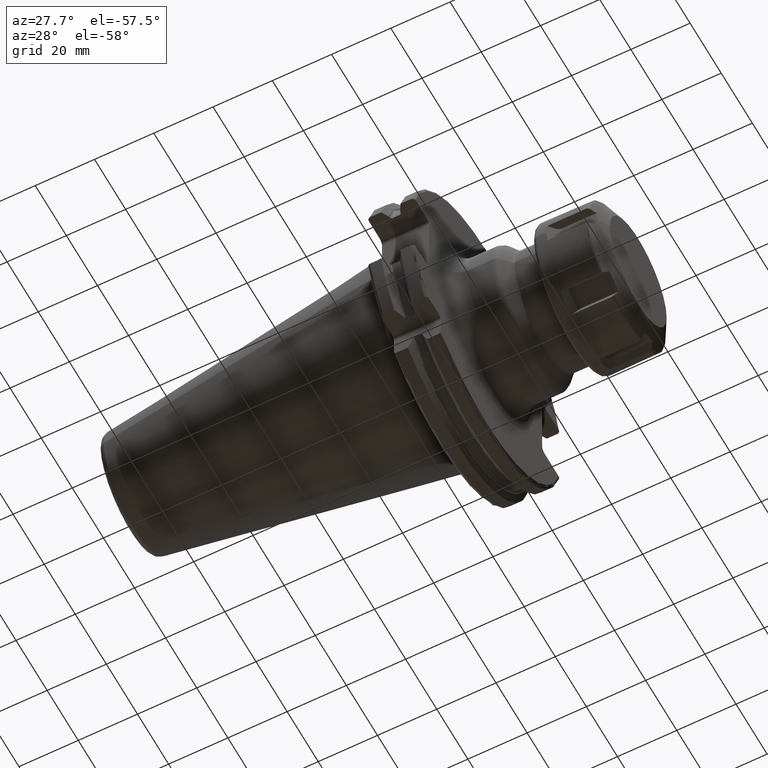
[diagram: clean part render]
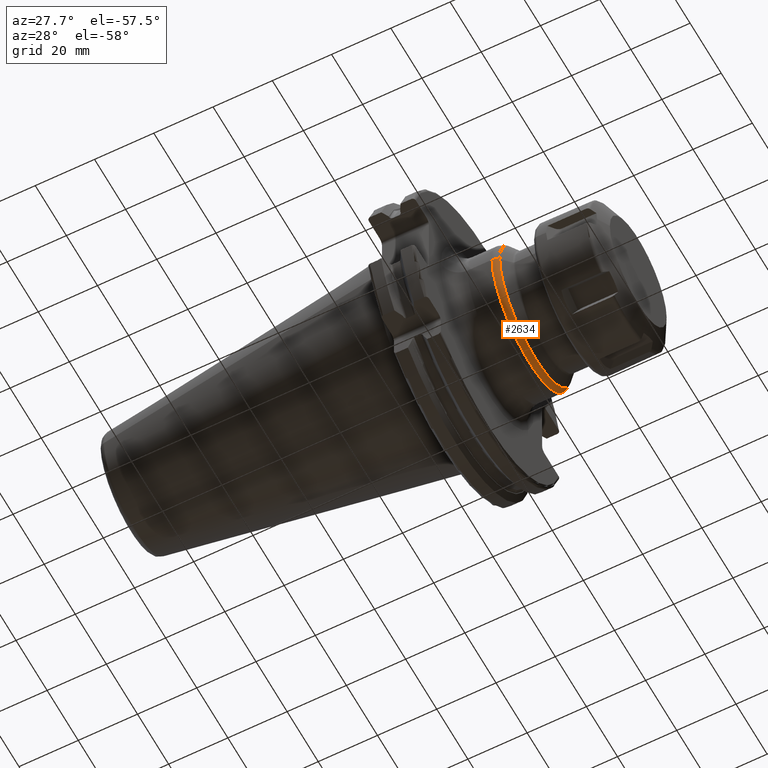
[diagram: same view with one face highlighted and labeled with its STEP entity id]
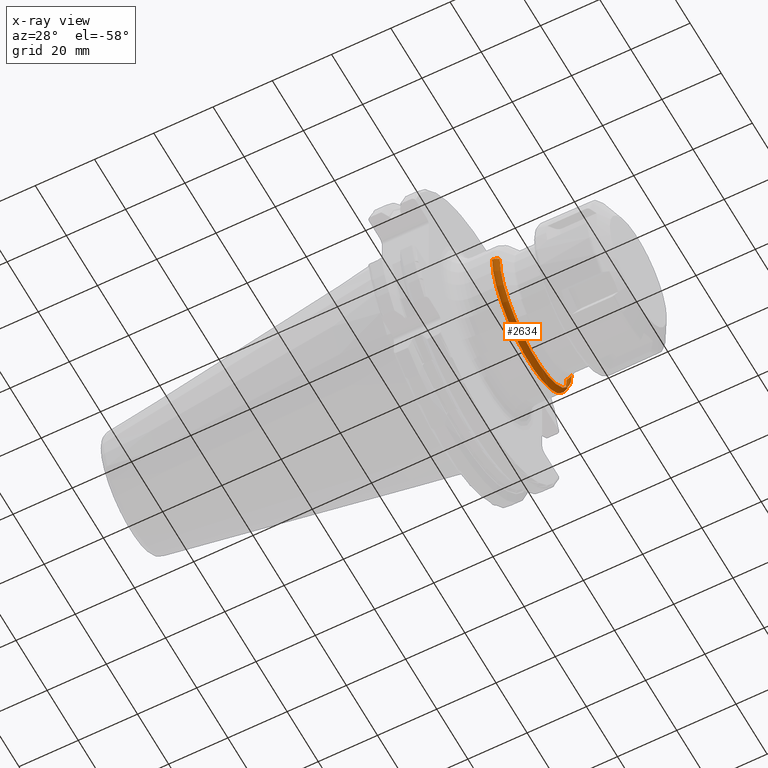
[diagram: x-ray of the same camera — body ghosted, the highlighted face saturated]
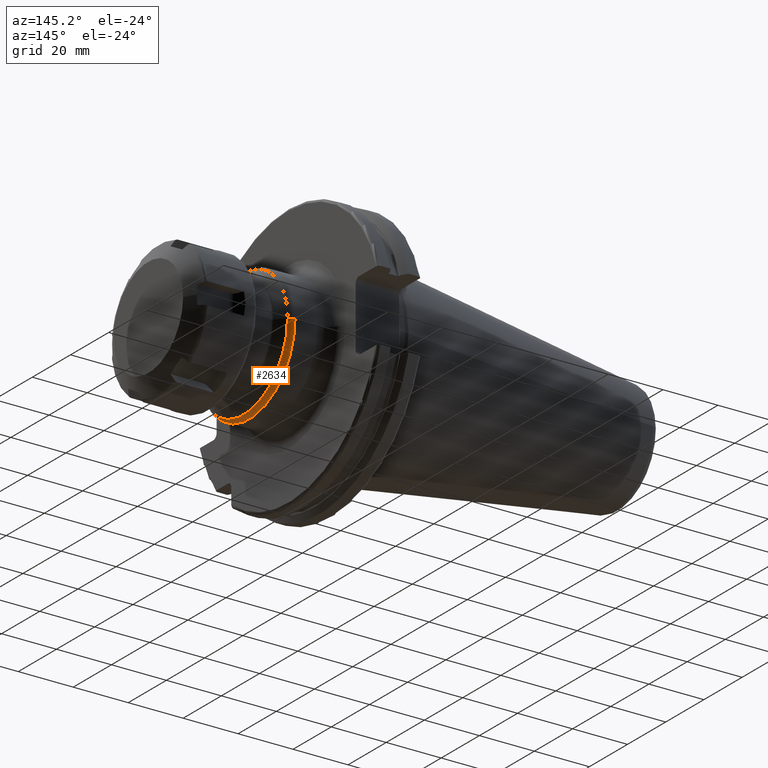
[diagram: same view with one face highlighted and labeled with its STEP entity id]
A machine part, auxiliary view. The second image highlights one B-rep face of the part: STEP entity #2634.
The next image is the same camera in x-ray: the body ghosted, the highlighted face saturated — about 0% of this face is hidden behind the body in this view.
A second angle (auxiliary view) of the same face is appended — the face is thin or edge-on in the first view.
In plain terms, the highlighted toroidal blend (fillet) surface has major radius 21 mm and minor (blend) radius 3 mm.
Its self-contained STEP definition (entity closure, byte-faithful):
#972=CARTESIAN_POINT('',(3.325735931288E1,-2.1E1,-4.703940015283E-11));
#973=DIRECTION('',(0.E0,-2.239972096696E-12,1.E0));
#974=DIRECTION('',(0.E0,-1.E0,-2.239972096696E-12));
#975=AXIS2_PLACEMENT_3D('',#972,#973,#974);
#977=CARTESIAN_POINT('',(3.325735931288E1,2.1E1,4.704225897711E-11));
#978=DIRECTION('',(0.E0,2.240108272489E-12,-1.E0));
#979=DIRECTION('',(0.E0,1.E0,2.240108272489E-12));
#980=AXIS2_PLACEMENT_3D('',#977,#978,#979);
#982=CARTESIAN_POINT('',(3.325735931288E1,0.E0,0.E0));
#983=DIRECTION('',(-1.E0,0.E0,0.E0));
#984=DIRECTION('',(0.E0,1.E0,0.E0));
#985=AXIS2_PLACEMENT_3D('',#982,#983,#984);
#1000=CARTESIAN_POINT('',(3.537867965644E1,0.E0,0.E0));
#1001=DIRECTION('',(-1.E0,0.E0,0.E0));
#1002=DIRECTION('',(0.E0,1.E0,0.E0));
#1003=AXIS2_PLACEMENT_3D('',#1000,#1001,#1002);
#1563=CARTESIAN_POINT('',(3.325735931288E1,2.4E1,0.E0));
#1564=CARTESIAN_POINT('',(3.325735931288E1,-2.4E1,0.E0));
#1565=VERTEX_POINT('',#1563);
#1566=VERTEX_POINT('',#1564);
#1567=CARTESIAN_POINT('',(3.537867965644E1,2.312132034356E1,0.E0));
#1568=CARTESIAN_POINT('',(3.537867965644E1,-2.312132034356E1,0.E0));
#1569=VERTEX_POINT('',#1567);
#1570=VERTEX_POINT('',#1568);
#2621=CARTESIAN_POINT('',(3.325735931288E1,0.E0,0.E0));
#2622=DIRECTION('',(1.E0,0.E0,0.E0));
#2623=DIRECTION('',(0.E0,9.999810241799E-1,6.160461033104E-3));
#2624=AXIS2_PLACEMENT_3D('',#2621,#2622,#2623);
#2625=TOROIDAL_SURFACE('',#2624,2.1E1,3.E0);
#2627=ORIENTED_EDGE('',*,*,#2626,.T.);
#2628=ORIENTED_EDGE('',*,*,#2616,.T.);
#2630=ORIENTED_EDGE('',*,*,#2629,.F.);
#2631=ORIENTED_EDGE('',*,*,#2612,.F.);
#2632=EDGE_LOOP('',(#2627,#2628,#2630,#2631));
#2633=FACE_OUTER_BOUND('',#2632,.F.);
#2634=ADVANCED_FACE('',(#2633),#2625,.T.);
#976=CIRCLE('',#975,3.E0);
#981=CIRCLE('',#980,3.E0);
#986=CIRCLE('',#985,2.4E1);
#1004=CIRCLE('',#1003,2.312132034356E1);
#2612=EDGE_CURVE('',#1565,#1569,#981,.T.);
#2616=EDGE_CURVE('',#1566,#1570,#976,.T.);
#2626=EDGE_CURVE('',#1565,#1566,#986,.T.);
#2629=EDGE_CURVE('',#1569,#1570,#1004,.T.);